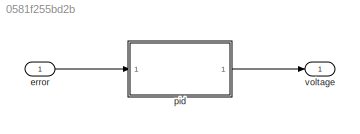
MODEL slx_0581f255bd2b
KIND model
BLOCK [Inport] error
  AttributesFormatString = <tsample = %<SampleTime>>
  IconDisplay = Port number
  OutDataTypeStr = single
  PortDimensions = 1
  SampleTime = Ts
  SamplingMode = Sample based
  SignalType = real
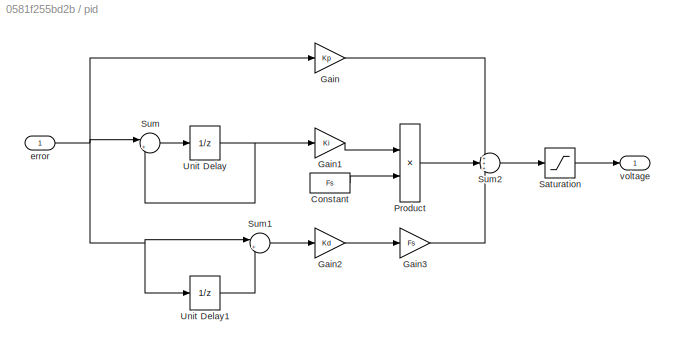
BLOCK [SubSystem] pid
  Ports = [1, 1]
  RequestExecContextInheritance = off
BLOCK [Constant] pid/Constant
  SampleTime = Ts
  Value = Fs
BLOCK [Gain] pid/Gain
  Gain = Kp
  ParamDataTypeStr = Inherit: Inherit via internal rule
  SaturateOnIntegerOverflow = off
BLOCK [Gain] pid/Gain1
  Gain = Ki
  ParamDataTypeStr = Inherit: Inherit via internal rule
  SaturateOnIntegerOverflow = off
BLOCK [Gain] pid/Gain2
  Gain = Kd
  ParamDataTypeStr = Inherit: Inherit via internal rule
  SaturateOnIntegerOverflow = off
BLOCK [Gain] pid/Gain3
  Gain = Fs
  ParamDataTypeStr = Inherit: Inherit via internal rule
  SaturateOnIntegerOverflow = off
BLOCK [Product] pid/Product
  InputSameDT = off
  Inputs = */
  Ports = [2, 1]
  SaturateOnIntegerOverflow = off
BLOCK [Saturate] pid/Saturation
  AttributesFormatString = <limits = %<UpperLimit> / %<LowerLimit>>
  InputPortMap = u0
  LowerLimit = -5
  Ports = [1, 1]
  UpperLimit = 5
BLOCK [Sum] pid/Sum
  IconShape = round
  InputSameDT = off
  Inputs = |++
  Ports = [2, 1]
  SaturateOnIntegerOverflow = off
BLOCK [Sum] pid/Sum1
  IconShape = round
  InputSameDT = off
  Inputs = |+-
  Ports = [2, 1]
  SaturateOnIntegerOverflow = off
BLOCK [Sum] pid/Sum2
  IconShape = round
  InputSameDT = off
  Inputs = +++
  Ports = [3, 1]
  SaturateOnIntegerOverflow = off
BLOCK [UnitDelay] pid/Unit Delay
  AttributesFormatString = <identifer = %<StateIdentifier>>\n<initial = %<X0>>\n<tsample = %<SampleTime>>
  SampleTime = -1
BLOCK [UnitDelay] pid/Unit Delay1
  AttributesFormatString = <identifer = %<StateIdentifier>>\n<initial = %<X0>>\n<tsample = %<SampleTime>>
  SampleTime = -1
BLOCK [Inport] pid/error
  IconDisplay = Port number
BLOCK [Outport] pid/voltage
  IconDisplay = Port number
BLOCK [Outport] voltage
  IconDisplay = Port number
  OutDataTypeStr = single
  SamplingMode = Sample based
  SignalType = real
LINE error:1 -> pid:1
LINE pid/Constant:1 -> pid/Product:2
LINE pid/Gain1:1 -> pid/Product:1
LINE pid/Gain2:1 -> pid/Gain3:1
LINE pid/Gain3:1 -> pid/Sum2:3
LINE pid/Gain:1 -> pid/Sum2:1
LINE pid/Product:1 -> pid/Sum2:2
LINE pid/Saturation:1 -> pid/voltage:1
LINE pid/Sum1:1 -> pid/Gain2:1
LINE pid/Sum2:1 -> pid/Saturation:1
LINE pid/Sum:1 -> pid/Unit Delay:1
LINE pid/Unit Delay1:1 -> pid/Sum1:2
NET pid/Unit Delay:1 -> pid/Gain1:1, pid/Sum:2
NET pid/error:1 -> pid/Gain:1, pid/Sum1:1, pid/Sum:1, pid/Unit Delay1:1
LINE pid:1 -> voltage:1
note: NET lines group one-source signal fan-out (src -> all destinations, sorted); 1:1 wires keep LINE
